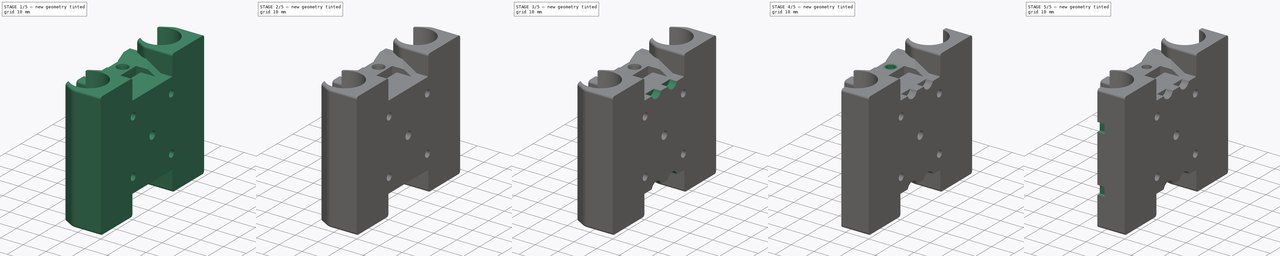
[diagram: build sequence overview — one tinted view per stage of 5, left to right]
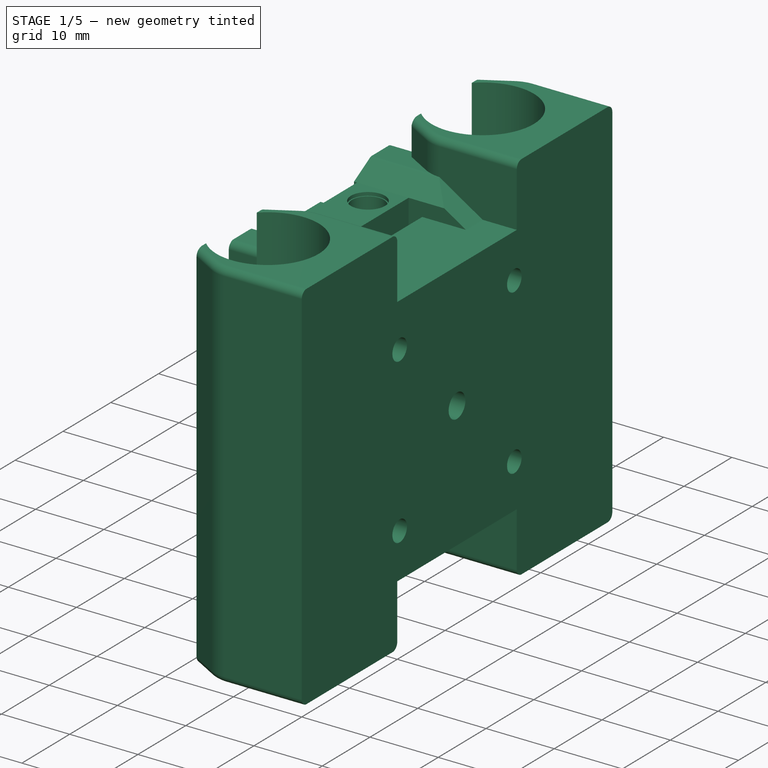
[diagram: stage 1 of 5 — iso view after this stage's code; geometry added in this stage tinted green]
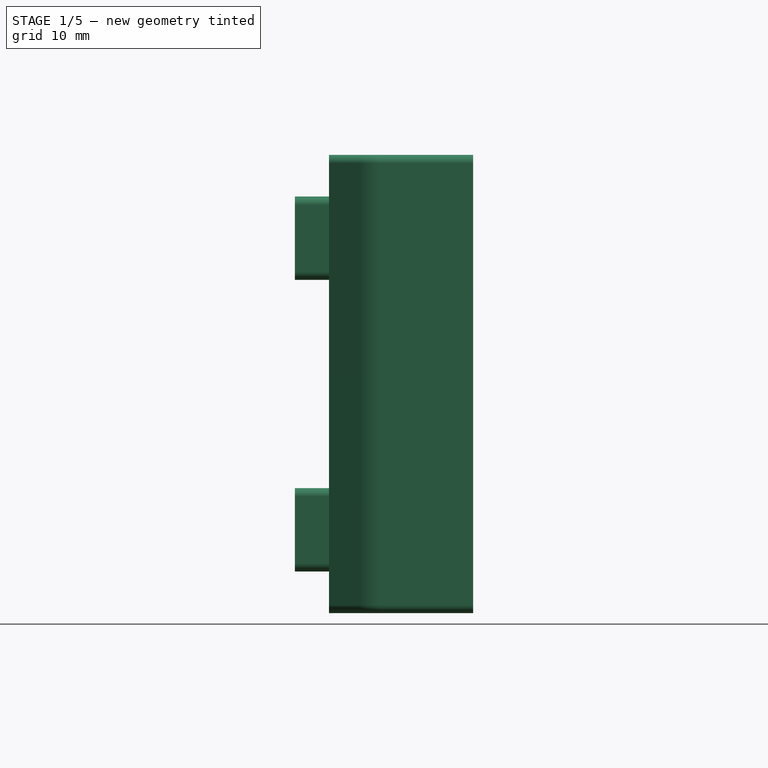
[diagram: stage 1 of 5 — front view after this stage's code; geometry added in this stage tinted green]
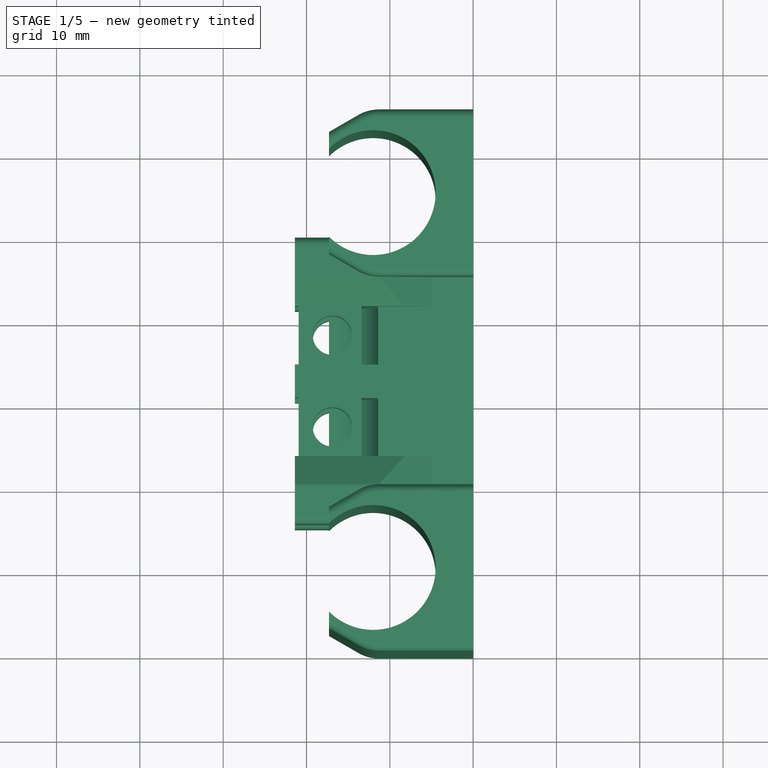
[diagram: stage 1 of 5 — top view after this stage's code; geometry added in this stage tinted green]
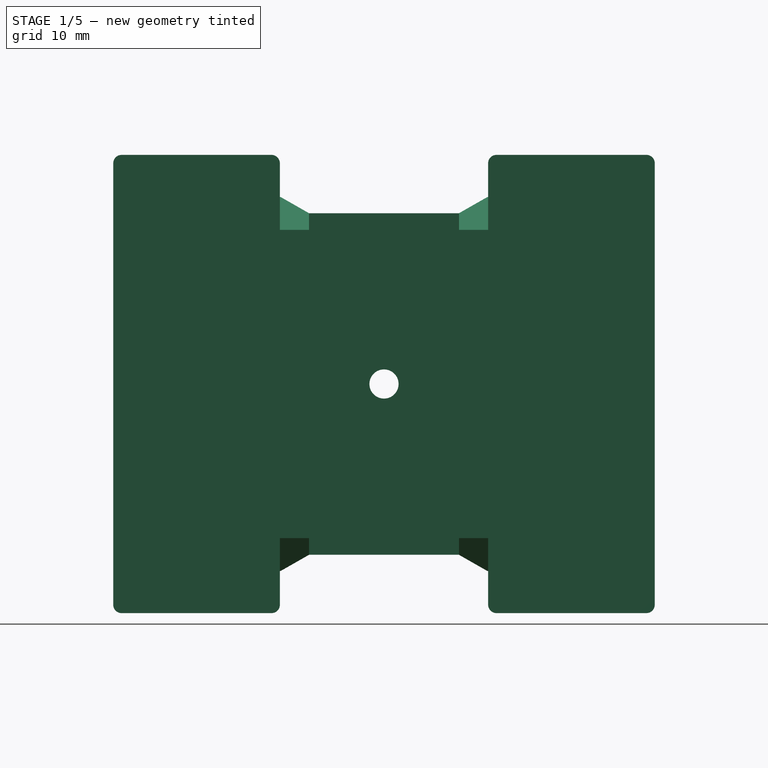
[diagram: stage 1 of 5 — right view after this stage's code; geometry added in this stage tinted green]
FCSTD DOCUMENT  (FreeCAD 0.17R13519 (Git))
Label: Corelia_0_X_carriage_v2
License: All rights reserved
LicenseURL: http://en.wikipedia.org/wiki/All_rights_reserved
objects: Sketcher::SketchObject×21, PartDesign::Pad×10, PartDesign::Pocket×9, PartDesign::LinearPattern×2, Part::Feature×1, PartDesign::FeatureBase×1, PartDesign::Groove×1, PartDesign::Fillet×1, PartDesign::Body×1
note: 67 computed .brp shape members not serialized (recipe doc carries the construction recipe); baked Part::Feature solids carry a one-line shape summary decoded from their .brp

FEATURE [Part::Feature] Part__Feature  label="X Carriage"
  shape: bbox 21.4 x 65.82 x 55 mm, 269 faces (baked)
FEATURE [PartDesign::FeatureBase] BaseFeature
  BaseFeature = -> Part__Feature
FEATURE [Sketcher::SketchObject] Sketch
  ExternalGeometry = -> [BaseFeature]
  MapMode = 5
  Placement = pos=(-21.4,0,0) rot=(-0.57735,0.57735,0.57735;4.18879rad)
  Support = -> [BaseFeature]
  sketch-geometry (2):
    g0: Circle CenterX=-45 CenterY=45 CenterZ=0 NormalX=0 NormalY=0 NormalZ=1 AngleXU=0 Radius=2.5
    g1: Circle CenterX=-45 CenterY=45 CenterZ=0 NormalX=0 NormalY=0 NormalZ=1 AngleXU=0 Radius=1.85
  constraints (4):
    c: Coincident(g0,g-3)
    c: Coincident(g1,g0)
    c: Radius(g1) = 1.85
    c: Radius(g0) = 2.5
FEATURE [PartDesign::Pad] Pad
  BaseFeature = -> BaseFeature
  Length = 10
  Length2 = 100
  Profile = -> Sketch
  Type = 3
  UpToFace = -> BaseFeature [Face256]
FEATURE [Sketcher::SketchObject] Sketch001
  ExternalGeometry = -> [Pad]
  MapMode = 5
  Placement = pos=(-19.9,0,0) rot=(-0.57735,0.57735,0.57735;4.18879rad)
  Support = -> [Pad]
  sketch-geometry (2):
    g0: Circle CenterX=-32.5 CenterY=45 CenterZ=0 NormalX=0 NormalY=0 NormalZ=1 AngleXU=0 Radius=2.5
    g1: Circle CenterX=-32.5 CenterY=45 CenterZ=0 NormalX=0 NormalY=0 NormalZ=1 AngleXU=0 Radius=1.85
  constraints (4):
    c: Coincident(g0,g-3)
    c: Coincident(g1,g0)
    c: Radius(g0) = 2.5
    c: Radius(g1) = 1.85
FEATURE [PartDesign::Pad] Pad001
  BaseFeature = -> Pad
  Length = 10
  Length2 = 100
  Profile = -> Sketch001
  Type = 3
  UpToFace = -> Pad [Face259]
FEATURE [Sketcher::SketchObject] Sketch002
  ExternalGeometry = -> [Pad001]
  MapMode = 5
  Placement = pos=(-21.4,0,0) rot=(-0.57735,0.57735,0.57735;4.18879rad)
  Support = -> [Pad001]
  sketch-geometry (2):
    g0: Circle CenterX=-20 CenterY=45 CenterZ=0 NormalX=0 NormalY=0 NormalZ=1 AngleXU=0 Radius=1.85
    g1: Circle CenterX=-20 CenterY=45 CenterZ=0 NormalX=0 NormalY=0 NormalZ=1 AngleXU=0 Radius=2.5
  constraints (4):
    c: Coincident(g0,g-3)
    c: Coincident(g1,g0)
    c: Radius(g0) = 1.85
    c: Radius(g1) = 2.5
FEATURE [PartDesign::Pad] Pad002
  BaseFeature = -> Pad001
  Length = 10
  Length2 = 100
  Profile = -> Sketch002
  Type = 3
  UpToFace = -> Pad001 [Face258]
FEATURE [Sketcher::SketchObject] Sketch003
  ExternalGeometry = -> [Pad002]
  MapMode = 5
  Placement = pos=(-21.4,0,0) rot=(-0.57735,0.57735,0.57735;4.18879rad)
  Support = -> [Pad002]
  sketch-geometry (2):
    g0: Circle CenterX=-45 CenterY=10 CenterZ=0 NormalX=0 NormalY=0 NormalZ=1 AngleXU=0 Radius=2.5
    g1: Circle CenterX=-45 CenterY=10 CenterZ=0 NormalX=0 NormalY=0 NormalZ=1 AngleXU=0 Radius=1.85
  constraints (4):
    c: Coincident(g0,g-3)
    c: Coincident(g1,g0)
    c: Radius(g1) = 1.85
    c: Radius(g0) = 2.5
FEATURE [PartDesign::Pad] Pad003
  BaseFeature = -> Pad002
  Length = 10
  Length2 = 100
  Profile = -> Sketch003
  Type = 3
  UpToFace = -> Pad002 [Face234]
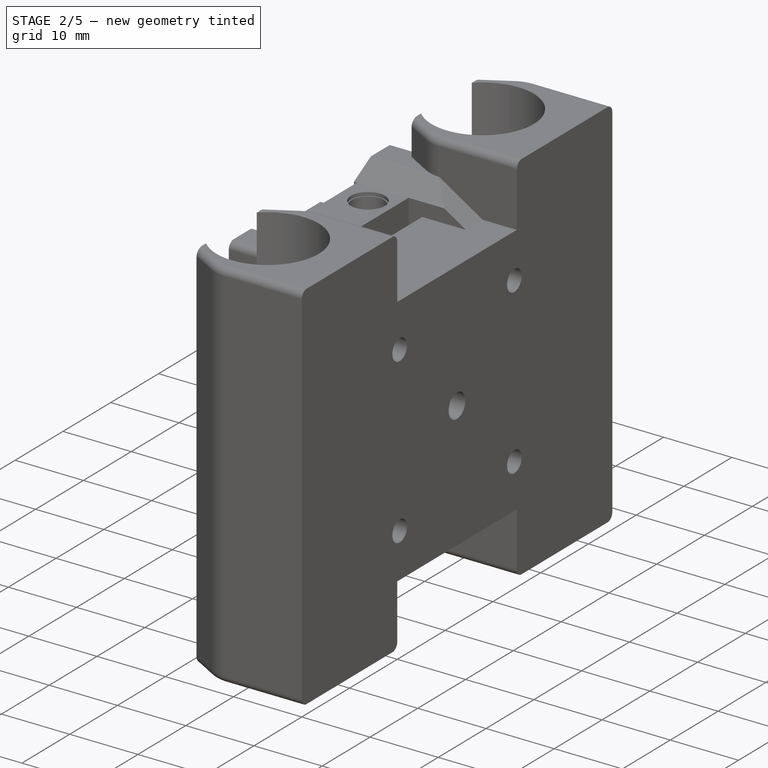
[diagram: stage 2 of 5 — iso view after this stage's code; geometry added in this stage tinted green]
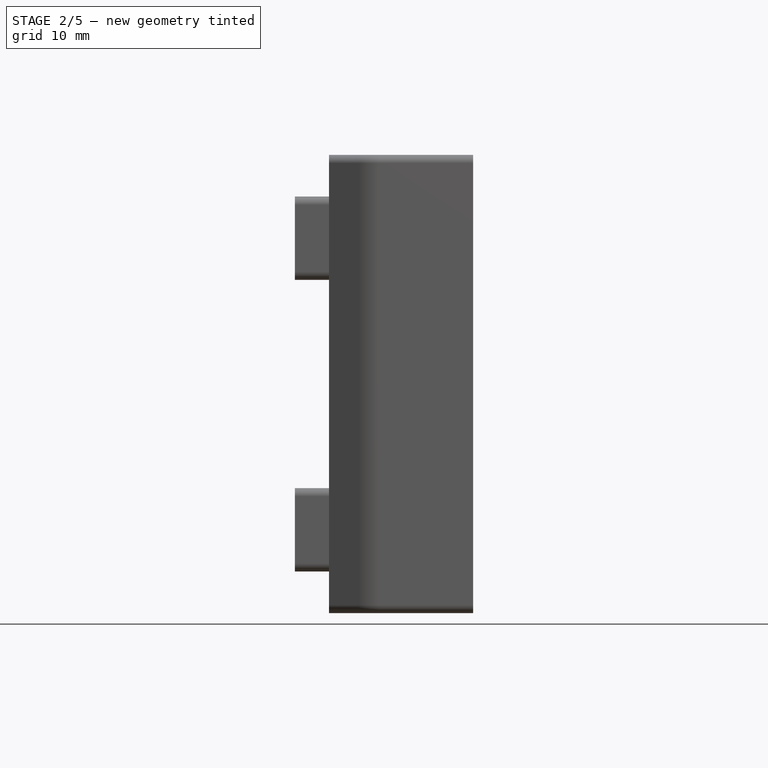
[diagram: stage 2 of 5 — front view after this stage's code; geometry added in this stage tinted green]
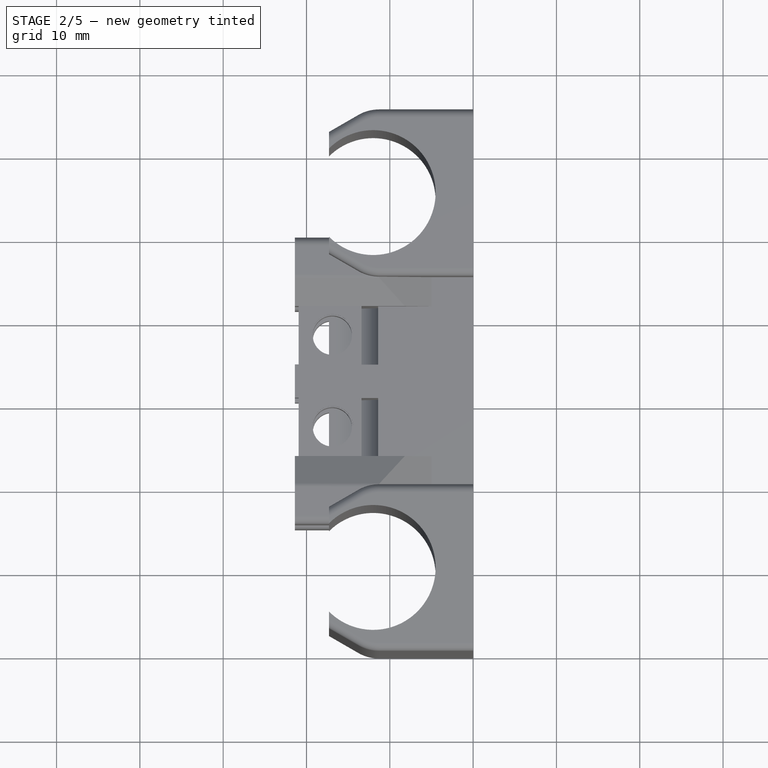
[diagram: stage 2 of 5 — top view after this stage's code; geometry added in this stage tinted green]
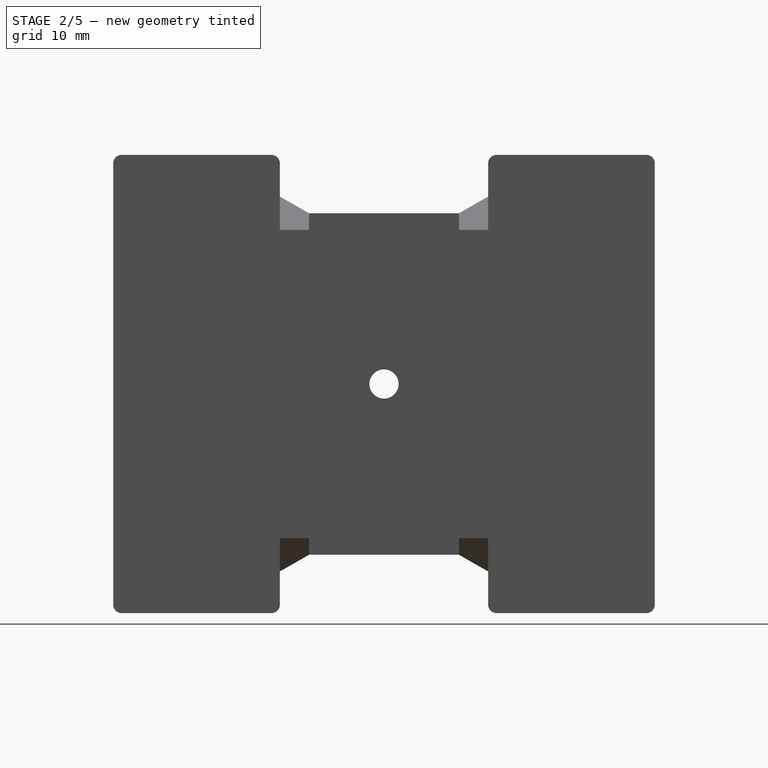
[diagram: stage 2 of 5 — right view after this stage's code; geometry added in this stage tinted green]
FEATURE [Sketcher::SketchObject] Sketch004
  ExternalGeometry = -> [Pad003]
  MapMode = 5
  Placement = pos=(-19.9,0,0) rot=(-0.57735,0.57735,0.57735;4.18879rad)
  Support = -> [Pad003]
  sketch-geometry (2):
    g0: Circle CenterX=-32.5 CenterY=10 CenterZ=0 NormalX=0 NormalY=0 NormalZ=1 AngleXU=0 Radius=1.85
    g1: Circle CenterX=-32.5 CenterY=10 CenterZ=0 NormalX=0 NormalY=0 NormalZ=1 AngleXU=0 Radius=2.35
  constraints (4):
    c: Coincident(g0,g-3)
    c: Coincident(g1,g0)
    c: Radius(g0) = 1.85
    c: Radius(g1) = 2.35
FEATURE [PartDesign::Pad] Pad004
  BaseFeature = -> Pad003
  Length = 10
  Length2 = 100
  Profile = -> Sketch004
  Type = 3
  UpToFace = -> Pad003 [Face250]
FEATURE [Sketcher::SketchObject] Sketch006
  ExternalGeometry = -> [Pad004]
  MapMode = 5
  Placement = pos=(-21.4,0,0) rot=(-0.57735,0.57735,0.57735;4.18879rad)
  Support = -> [Pad004]
  sketch-geometry (2):
    g0: Circle CenterX=-20 CenterY=10 CenterZ=0 NormalX=0 NormalY=0 NormalZ=1 AngleXU=0 Radius=1.85
    g1: Circle CenterX=-20 CenterY=10 CenterZ=0 NormalX=0 NormalY=0 NormalZ=1 AngleXU=0 Radius=2.5
  constraints (4):
    c: Coincident(g0,g-3)
    c: Coincident(g1,g0)
    c: Radius(g0) = 1.85
    c: Radius(g1) = 2.5
FEATURE [PartDesign::Pad] Pad005
  BaseFeature = -> Pad004
  Length = 10
  Length2 = 100
  Profile = -> Sketch006
  Type = 3
  UpToFace = -> Pad004 [Face256]
FEATURE [Sketcher::SketchObject] Sketch007
  ExternalGeometry = -> [Pad005]
  MapMode = 5
  Placement = pos=(-21.4,0,0) rot=(0.57735,-0.57735,-0.57735;2.0944rad)
  Support = -> [Pad005]
  sketch-geometry (1):
    g0: Circle CenterX=-45 CenterY=45 CenterZ=0 NormalX=0 NormalY=0 NormalZ=1 AngleXU=0 Radius=2
  constraints (2):
    c: Coincident(g0,g-3)
    c: Radius(g0) = 2
FEATURE [PartDesign::Pocket] Pocket
  BaseFeature = -> Pad005
  Length = 0.5
  Length2 = 100
  Profile = -> Sketch007
  Type = 0
FEATURE [Sketcher::SketchObject] Sketch008
  ExternalGeometry = -> [Pocket]
  MapMode = 5
  Placement = pos=(-21.4,0,0) rot=(-0.57735,0.57735,0.57735;4.18879rad)
  Support = -> [Pocket]
  sketch-geometry (1):
    g0: Circle CenterX=-20 CenterY=45 CenterZ=0 NormalX=0 NormalY=0 NormalZ=1 AngleXU=0 Radius=2
  constraints (2):
    c: Coincident(g0,g-3)
    c: Radius(g0) = 2
FEATURE [PartDesign::Pocket] Pocket001
  BaseFeature = -> Pocket
  Length = 0.5
  Length2 = 100
  Profile = -> Sketch008
  Type = 0
FEATURE [Sketcher::SketchObject] Sketch009
  ExternalGeometry = -> [Pocket001]
  MapMode = 5
  Placement = pos=(-21.4,0,0) rot=(0.57735,-0.57735,-0.57735;2.0944rad)
  Support = -> [Pocket001]
  sketch-geometry (1):
    g0: Circle CenterX=-45 CenterY=10 CenterZ=0 NormalX=0 NormalY=0 NormalZ=1 AngleXU=0 Radius=2
  constraints (2):
    c: Coincident(g0,g-3)
    c: Radius(g0) = 2
FEATURE [PartDesign::Pocket] Pocket002
  BaseFeature = -> Pocket001
  Length = 0.5
  Length2 = 100
  Profile = -> Sketch009
  Type = 0
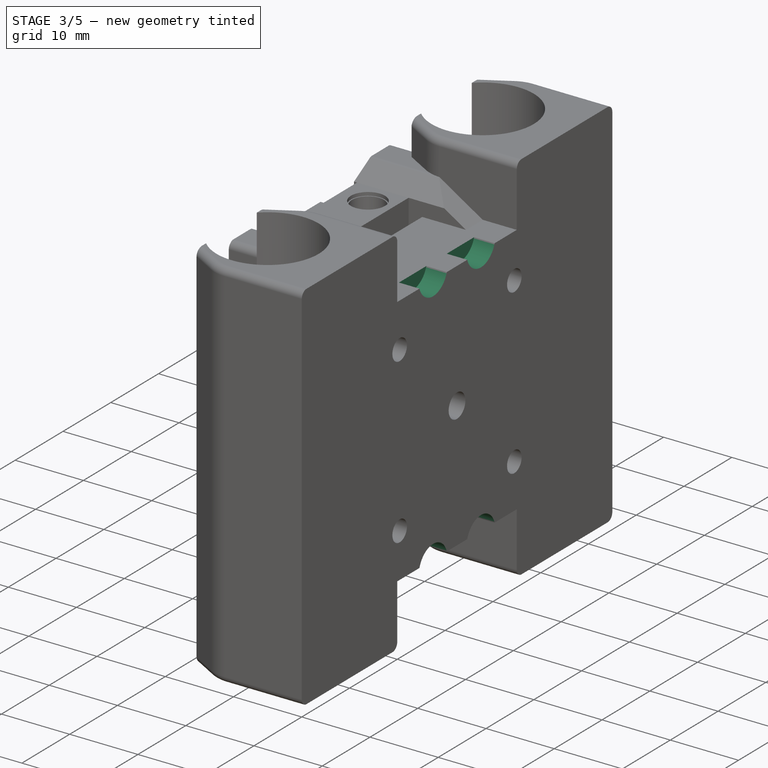
[diagram: stage 3 of 5 — iso view after this stage's code; geometry added in this stage tinted green]
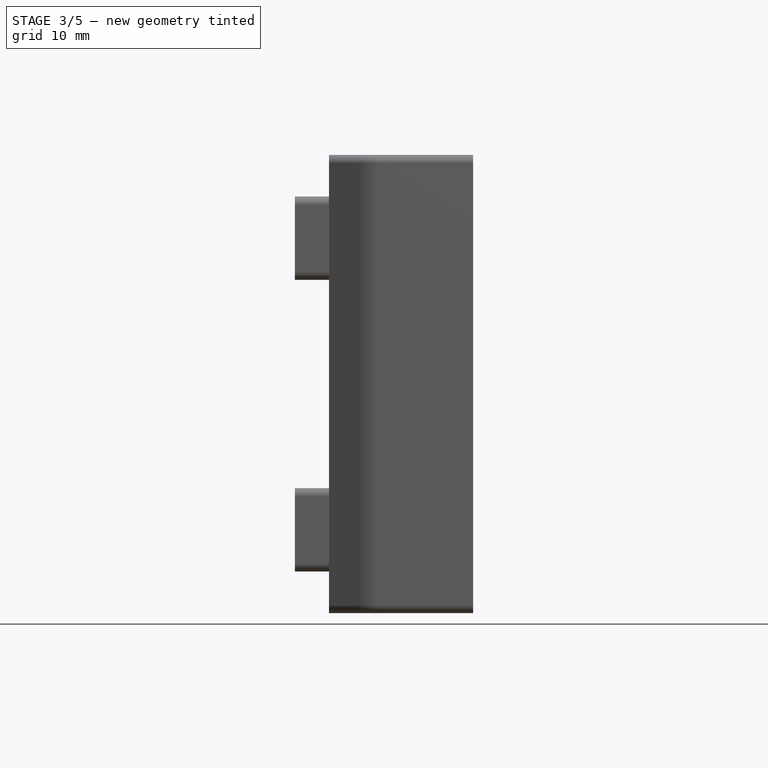
[diagram: stage 3 of 5 — front view after this stage's code; geometry added in this stage tinted green]
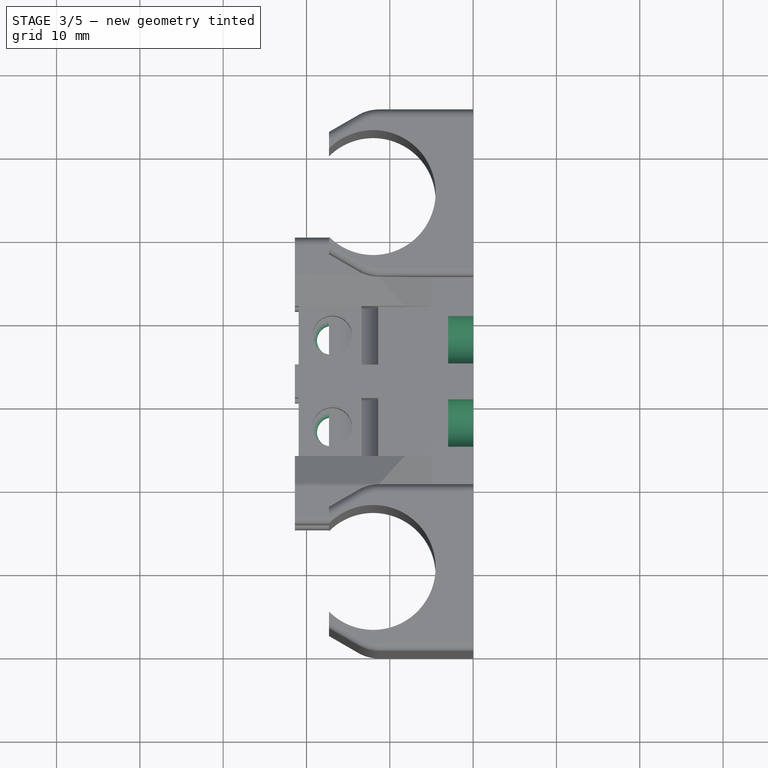
[diagram: stage 3 of 5 — top view after this stage's code; geometry added in this stage tinted green]
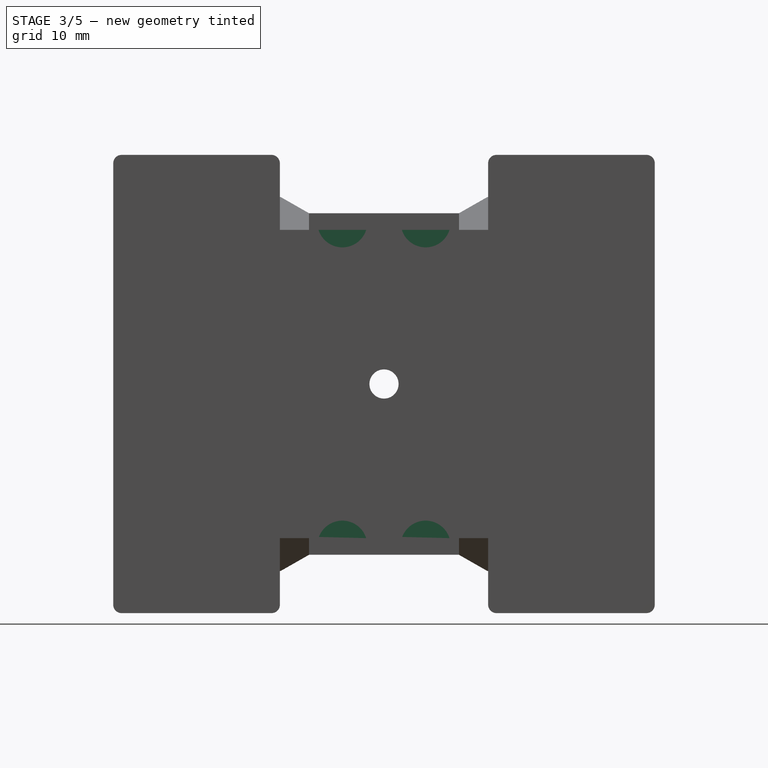
[diagram: stage 3 of 5 — right view after this stage's code; geometry added in this stage tinted green]
FEATURE [Sketcher::SketchObject] Sketch010
  ExternalGeometry = -> [Pocket002]
  MapMode = 5
  Placement = pos=(-21.4,0,0) rot=(-0.57735,0.57735,0.57735;4.18879rad)
  Support = -> [Pocket002]
  sketch-geometry (1):
    g0: Circle CenterX=-20 CenterY=10 CenterZ=0 NormalX=0 NormalY=0 NormalZ=1 AngleXU=0 Radius=2
  constraints (2):
    c: Coincident(g0,g-3)
    c: Radius(g0) = 2
FEATURE [PartDesign::Pocket] Pocket003
  BaseFeature = -> Pocket002
  Length = 0.5
  Length2 = 100
  Profile = -> Sketch010
  Type = 0
FEATURE [Sketcher::SketchObject] Sketch011
  MapMode = 5
  Placement = pos=(0,0,0) rot=(0.57735,0.57735,0.57735;2.0944rad)
  Support = -> [Pocket003]
  sketch-geometry (8):
    g0: LineSegment [constr] StartX=27.5 StartY=46.9 StartZ=0 EndX=37.5 EndY=46.9 EndZ=0
    g1: LineSegment [constr] StartX=37.5 StartY=46.9 StartZ=0 EndX=37.5 EndY=8.1 EndZ=0
    g2: LineSegment [constr] StartX=37.5 StartY=8.1 StartZ=0 EndX=27.5 EndY=8.1 EndZ=0
    g3: LineSegment [constr] StartX=27.5 StartY=8.1 StartZ=0 EndX=27.5 EndY=46.9 EndZ=0
    g4: Circle CenterX=27.5 CenterY=46.9 CenterZ=0 NormalX=0 NormalY=0 NormalZ=1 AngleXU=0 Radius=3
    g5: Circle CenterX=37.5 CenterY=46.9 CenterZ=0 NormalX=0 NormalY=0 NormalZ=1 AngleXU=0 Radius=3
    g6: Circle CenterX=27.5 CenterY=8.1 CenterZ=0 NormalX=0 NormalY=0 NormalZ=1 AngleXU=0 Radius=3
    g7: Circle CenterX=37.5 CenterY=8.1 CenterZ=0 NormalX=0 NormalY=0 NormalZ=1 AngleXU=0 Radius=3
  constraints (20):
    c: Coincident(g0,g1)
    c: Coincident(g1,g2)
    c: Coincident(g2,g3)
    c: Coincident(g3,g0)
    c: Horizontal(g0)
    c: Horizontal(g2)
    c: Vertical(g1)
    c: Vertical(g3)
    c: Coincident(g4,g0)
    c: Coincident(g5,g0)
    c: Coincident(g6,g2)
    c: Coincident(g7,g1)
    c: Equal(g6,g4)
    c: Equal(g4,g5)
    c: Equal(g5,g7)
    c: Radius(g4) = 3
    c: DistanceX(g2) = 27.5
    c: DistanceY(g2) = 8.1
    c: DistanceX(g2,g2) = 10
    c: DistanceY(g1,g1) = 38.8
FEATURE [PartDesign::Pocket] Pocket004
  BaseFeature = -> Pocket003
  Length = 3
  Length2 = 100
  Profile = -> Sketch011
  Type = 0
FEATURE [Sketcher::SketchObject] Sketch012
  ExternalGeometry = -> [Pocket004]
  MapMode = 5
  Placement = pos=(0,0,7) rot=(1,0,0;3.14159rad)
  Support = -> [Pocket004]
  sketch-geometry (2):
    g0: Circle CenterX=-16.9 CenterY=-27 CenterZ=0 NormalX=0 NormalY=0 NormalZ=1 AngleXU=0 Radius=2.5
    g1: Circle CenterX=-16.9 CenterY=-27 CenterZ=0 NormalX=0 NormalY=0 NormalZ=1 AngleXU=0 Radius=1.85
  constraints (4):
    c: Coincident(g0,g-3)
    c: Radius(g0) = 2.5
    c: Coincident(g1,g0)
    c: Radius(g1) = 1.85
FEATURE [PartDesign::Pad] Pad006
  BaseFeature = -> Pocket004
  Length = 10
  Length2 = 100
  Profile = -> Sketch012
  Type = 3
  UpToFace = -> Pocket004 [Face32]
FEATURE [Sketcher::SketchObject] Sketch013
  ExternalGeometry = -> [Pad006]
  MapMode = 5
  Placement = pos=(0,0,7) rot=(1,0,0;3.14159rad)
  Support = -> [Pad006]
  sketch-geometry (2):
    g0: Circle CenterX=-16.9 CenterY=-38 CenterZ=0 NormalX=0 NormalY=0 NormalZ=1 AngleXU=0 Radius=1.85
    g1: Circle CenterX=-16.9 CenterY=-38 CenterZ=0 NormalX=0 NormalY=0 NormalZ=1 AngleXU=0 Radius=2.5
  constraints (4):
    c: Coincident(g1,g0)
    c: Coincident(g-3,g0)
    c: Radius(g0) = 1.85
    c: Radius(g1) = 2.5
FEATURE [PartDesign::Pad] Pad007
  BaseFeature = -> Pad006
  Length = 10
  Length2 = 100
  Profile = -> Sketch013
  Type = 3
  UpToFace = -> Pad006 [Face32]
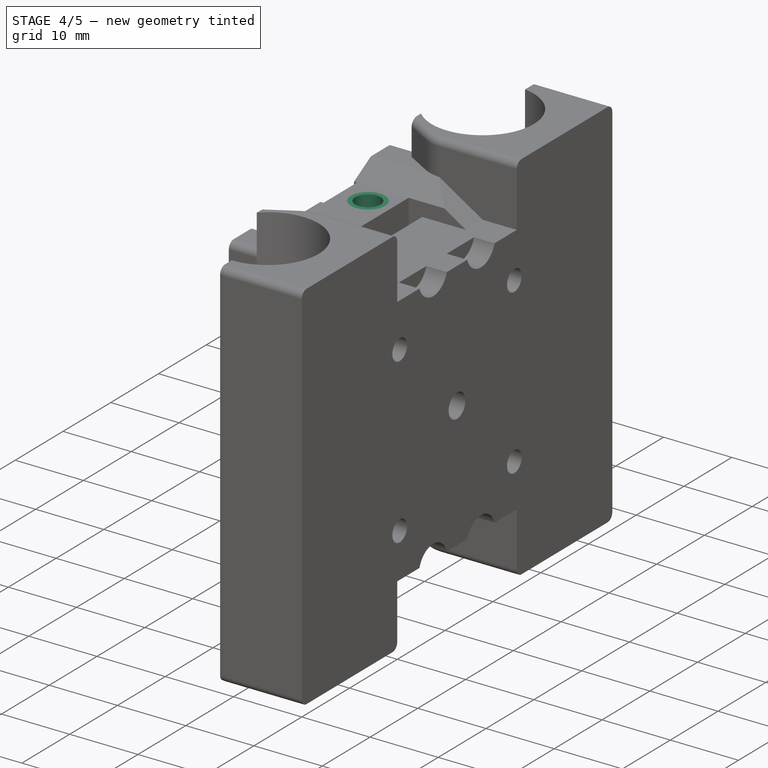
[diagram: stage 4 of 5 — iso view after this stage's code; geometry added in this stage tinted green]
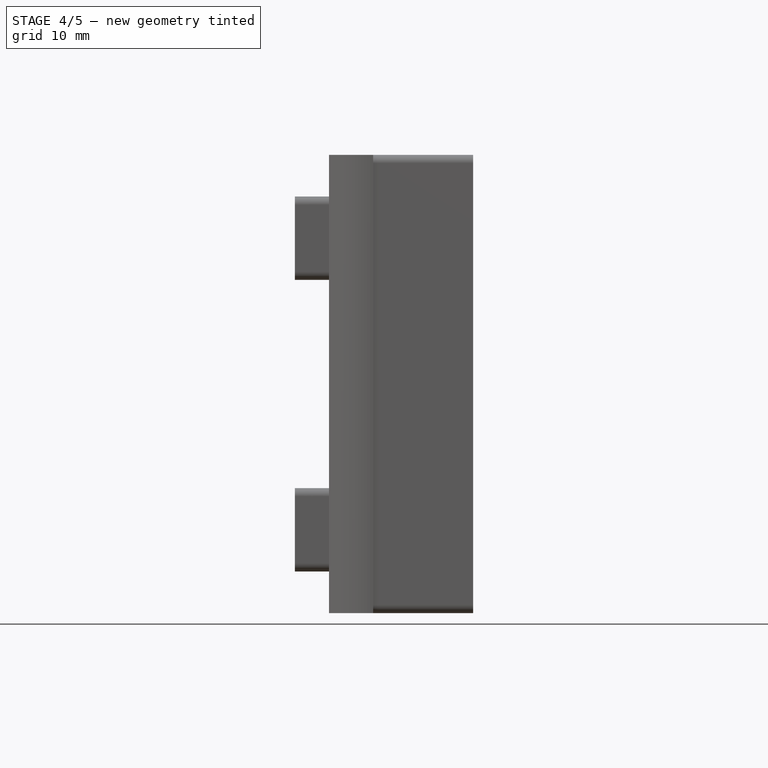
[diagram: stage 4 of 5 — front view after this stage's code; geometry added in this stage tinted green]
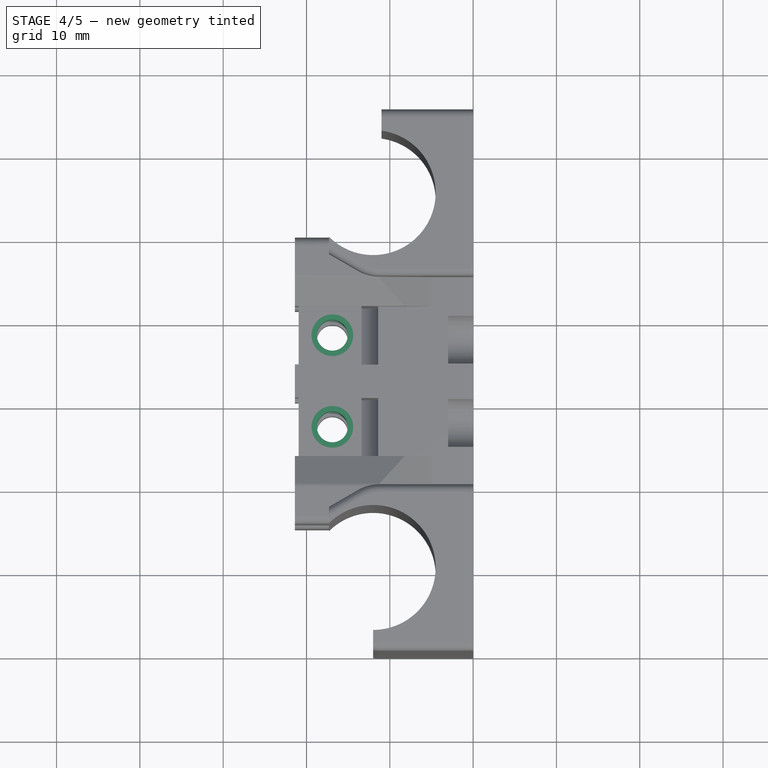
[diagram: stage 4 of 5 — top view after this stage's code; geometry added in this stage tinted green]
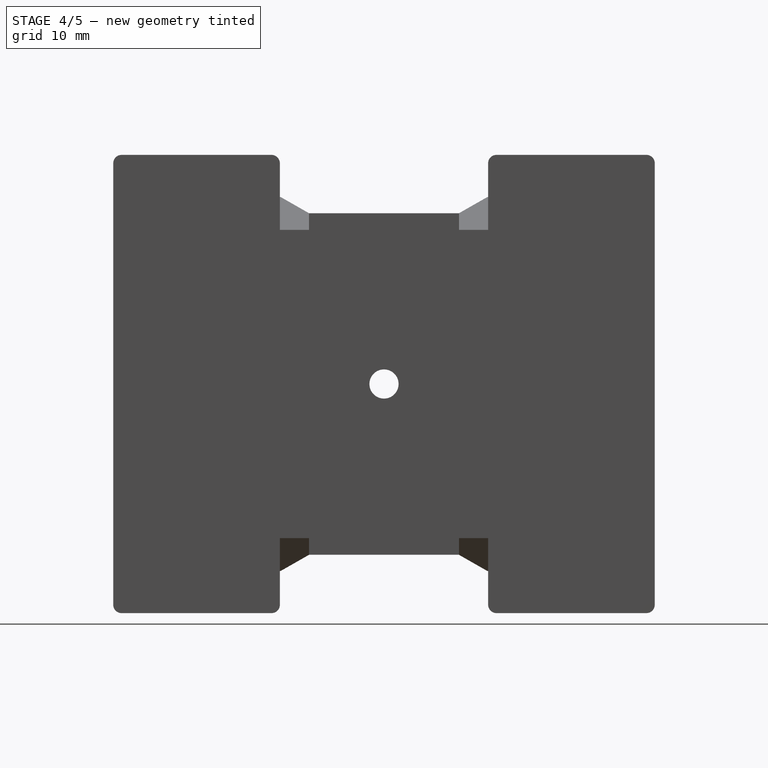
[diagram: stage 4 of 5 — right view after this stage's code; geometry added in this stage tinted green]
FEATURE [Sketcher::SketchObject] Sketch014
  ExternalGeometry = -> [Pad007]
  MapMode = 5
  Placement = pos=(0,0,48) rot=(0,0,1;0rad)
  Support = -> [Pad007]
  sketch-geometry (2):
    g0: Circle CenterX=-16.9 CenterY=38 CenterZ=0 NormalX=0 NormalY=0 NormalZ=1 AngleXU=0 Radius=2.5
    g1: Circle CenterX=-16.9 CenterY=38 CenterZ=0 NormalX=0 NormalY=0 NormalZ=1 AngleXU=0 Radius=1.85
  constraints (4):
    c: Coincident(g0,g-3)
    c: Coincident(g1,g0)
    c: Radius(g0) = 2.5
    c: Radius(g1) = 1.85
FEATURE [PartDesign::Pad] Pad008
  BaseFeature = -> Pad007
  Length = 10
  Length2 = 100
  Profile = -> Sketch014
  Type = 3
  UpToFace = -> Pad007 [Face48]
FEATURE [Sketcher::SketchObject] Sketch015
  ExternalGeometry = -> [Pad008]
  MapMode = 5
  Placement = pos=(0,0,48) rot=(0,0,1;0rad)
  Support = -> [Pad008]
  sketch-geometry (2):
    g0: Circle CenterX=-16.9 CenterY=27 CenterZ=0 NormalX=0 NormalY=0 NormalZ=1 AngleXU=0 Radius=2.5
    g1: Circle CenterX=-16.9 CenterY=27 CenterZ=0 NormalX=0 NormalY=0 NormalZ=1 AngleXU=0 Radius=1.85
  constraints (4):
    c: Coincident(g0,g-3)
    c: Coincident(g1,g0)
    c: Radius(g1) = 1.85
    c: Radius(g0) = 2.5
FEATURE [PartDesign::Pad] Pad009
  BaseFeature = -> Pad008
  Length = 10
  Length2 = 100
  Profile = -> Sketch015
  Type = 3
  UpToFace = -> Pad008 [Face48]
FEATURE [Sketcher::SketchObject] Sketch016
  ExternalGeometry = -> [Pad009]
  MapMode = 5
  Placement = pos=(0,0,42) rot=(1,0,0;3.14159rad)
  Support = -> [Pad009]
  sketch-geometry (2):
    g0: Circle CenterX=-16.9 CenterY=-27 CenterZ=0 NormalX=0 NormalY=0 NormalZ=1 AngleXU=0 Radius=2
    g1: Circle CenterX=-16.9 CenterY=-38 CenterZ=0 NormalX=0 NormalY=0 NormalZ=1 AngleXU=0 Radius=2
  constraints (4):
    c: Coincident(g0,g-4)
    c: Coincident(g1,g-3)
    c: Equal(g0,g1)
    c: Radius(g0) = 2
FEATURE [PartDesign::Pocket] Pocket005
  BaseFeature = -> Pad009
  Length = 0.5
  Length2 = 29.5
  Profile = -> Sketch016
  Type = 4
FEATURE [Sketcher::SketchObject] Sketch017
  MapMode = 5
  Placement = pos=(0,0,0) rot=(1,0,0;3.14159rad)
  Support = -> [Pocket005]
  sketch-geometry (8):
    g0: LineSegment StartX=-12 StartY=-10 StartZ=0 EndX=-23 EndY=-10 EndZ=0
    g1: LineSegment StartX=-23 StartY=-10 StartZ=0 EndX=-23 EndY=1 EndZ=0
    g2: LineSegment StartX=-23 StartY=1 StartZ=0 EndX=-12 EndY=1 EndZ=0
    g3: LineSegment StartX=-12 StartY=1 StartZ=0 EndX=-12 EndY=-10 EndZ=0
    g4: LineSegment StartX=-11 StartY=-55 StartZ=0 EndX=-22 EndY=-55 EndZ=0
    g5: LineSegment StartX=-22 StartY=-55 StartZ=0 EndX=-22 EndY=-66 EndZ=0
    g6: LineSegment StartX=-22 StartY=-66 StartZ=0 EndX=-11 EndY=-66 EndZ=0
    g7: LineSegment StartX=-11 StartY=-66 StartZ=0 EndX=-11 EndY=-55 EndZ=0
  constraints (24):
    c: Coincident(g0,g1)
    c: Coincident(g1,g2)
    c: Coincident(g2,g3)
    c: Coincident(g3,g0)
    c: Horizontal(g0)
    c: Horizontal(g2)
    c: Vertical(g1)
    c: Vertical(g3)
    c: Coincident(g4,g5)
    c: Coincident(g5,g6)
    c: Coincident(g6,g7)
    c: Coincident(g7,g4)
    c: Horizontal(g4)
    c: Horizontal(g6)
    c: Vertical(g5)
    c: Vertical(g7)
    c: Equal(g3,g0)
    c: Equal(g0,g4)
    c: Equal(g4,g7)
    c: DistanceX(g2,g2) = 11
    c: DistanceX(g0) = -12
    c: DistanceY(g0) = -10
    c: DistanceX(g4) = -11
    c: DistanceY(g4) = -55
FEATURE [PartDesign::Pocket] Pocket006
  BaseFeature = -> Pocket005
  Length = 5
  Length2 = 100
  Profile = -> Sketch017
  Type = 1
FEATURE [Sketcher::SketchObject] Sketch018
  MapMode = 5
  Placement = pos=(0,0,0) rot=(1,0,0;3.14159rad)
  Support = -> [Pocket006]
  sketch-geometry (2):
    g0: Circle CenterX=-12 CenterY=-10 CenterZ=0 NormalX=0 NormalY=0 NormalZ=1 AngleXU=0 Radius=7.5
    g1: Circle CenterX=-12 CenterY=-55 CenterZ=0 NormalX=0 NormalY=0 NormalZ=1 AngleXU=0 Radius=7.5
  constraints (6):
    c: DistanceX(g0) = -12
    c: DistanceY(g0) = -10
    c: Radius(g0) = 7.5
    c: DistanceX(g1) = -12
    c: DistanceY(g1) = -55
    c: Equal(g0,g1)
FEATURE [PartDesign::Pocket] Pocket007
  BaseFeature = -> Pocket006
  Length = 5
  Length2 = 100
  Profile = -> Sketch018
  Type = 1
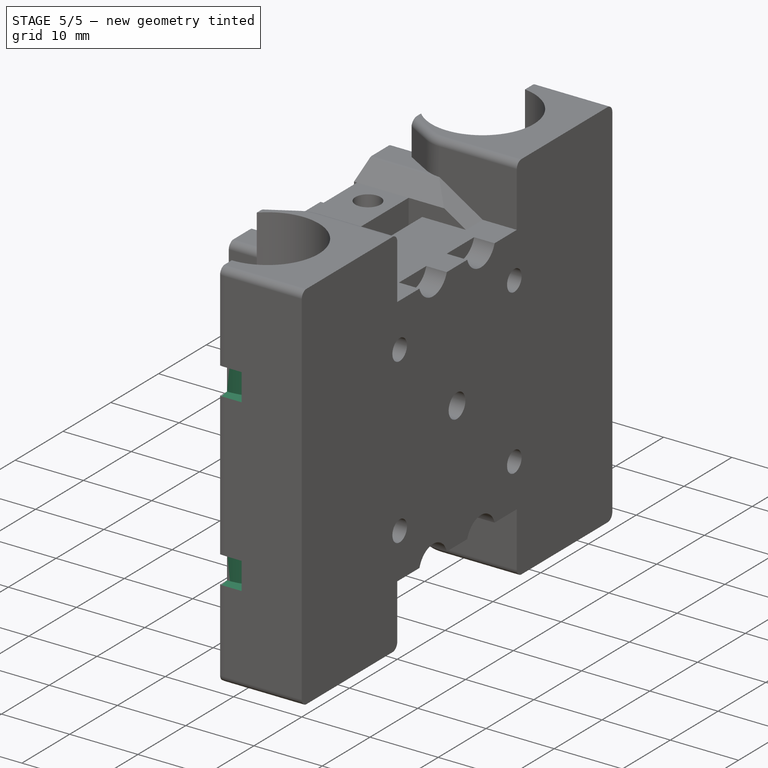
[diagram: stage 5 of 5 — iso view after this stage's code; geometry added in this stage tinted green]
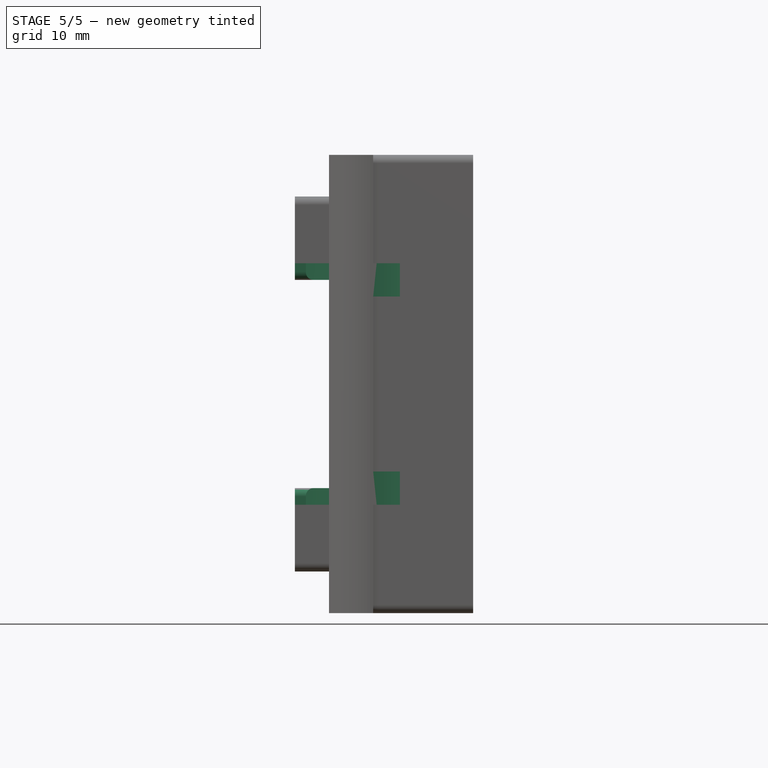
[diagram: stage 5 of 5 — front view after this stage's code; geometry added in this stage tinted green]
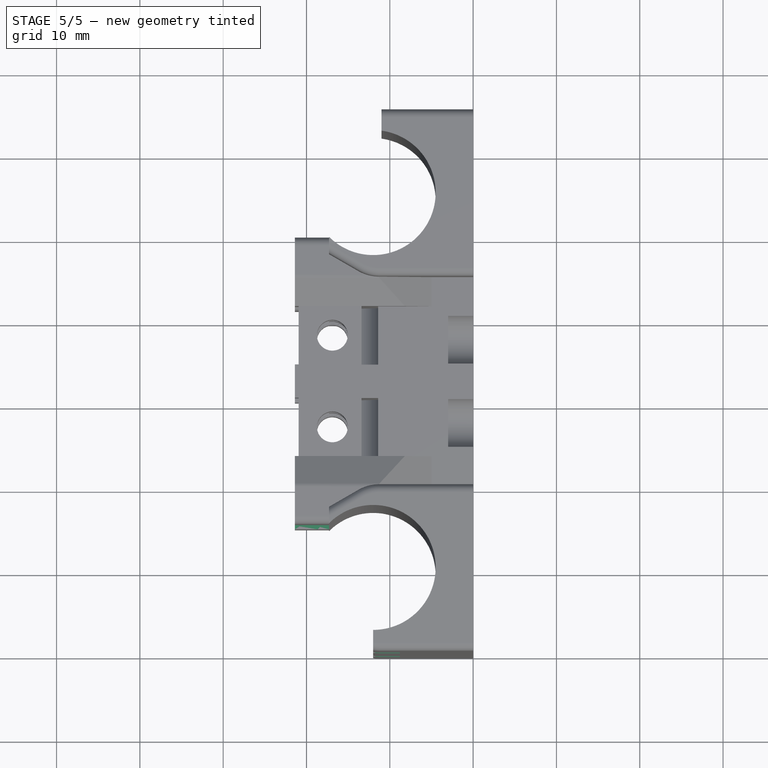
[diagram: stage 5 of 5 — top view after this stage's code; geometry added in this stage tinted green]
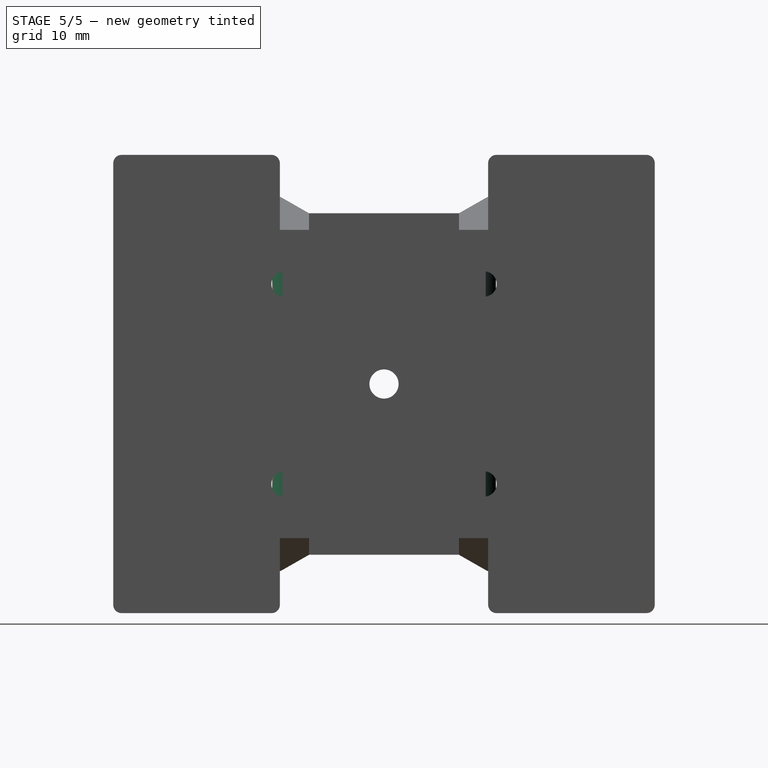
[diagram: stage 5 of 5 — right view after this stage's code; geometry added in this stage tinted green]
FEATURE [Sketcher::SketchObject] Sketch019
  MapMode = 5
  Placement = pos=(-12,0,0) rot=(0.57735,-0.57735,-0.57735;2.0944rad)
  Support = -> [Pocket007]
  sketch-geometry (8):
    g0: LineSegment StartX=-1.5 StartY=13 StartZ=0 EndX=0.5 EndY=13 EndZ=0
    g1: LineSegment StartX=0.5 StartY=13 StartZ=0 EndX=0.5 EndY=17 EndZ=0
    g2: LineSegment StartX=0.5 StartY=17 StartZ=0 EndX=-1.5 EndY=17 EndZ=0
    g3: LineSegment StartX=-1.5 StartY=17 StartZ=0 EndX=-1.5 EndY=13 EndZ=0
    g4: LineSegment StartX=0.5 StartY=42 StartZ=0 EndX=-1.5 EndY=42 EndZ=0
    g5: LineSegment StartX=-1.5 StartY=42 StartZ=0 EndX=-1.5 EndY=38 EndZ=0
    g6: LineSegment StartX=-1.5 StartY=38 StartZ=0 EndX=0.5 EndY=38 EndZ=0
    g7: LineSegment StartX=0.5 StartY=38 StartZ=0 EndX=0.5 EndY=42 EndZ=0
  constraints (24):
    c: Coincident(g0,g1)
    c: Coincident(g1,g2)
    c: Coincident(g2,g3)
    c: Coincident(g3,g0)
    c: Horizontal(g0)
    c: Horizontal(g2)
    c: Vertical(g1)
    c: Vertical(g3)
    c: DistanceX(g0,g0) = 2
    c: DistanceY(g1,g1) = 4
    c: DistanceY(g0) = 13
    c: DistanceX(g0) = 0.5
    c: Coincident(g4,g5)
    c: Coincident(g5,g6)
    c: Coincident(g6,g7)
    c: Coincident(g7,g4)
    c: Horizontal(g4)
    c: Horizontal(g6)
    c: Vertical(g5)
    c: Vertical(g7)
    c: Equal(g1,g7)
    c: Equal(g6,g0)
    c: PointOnObject(g6,g1)
    c: DistanceY(g1,g6) = 21
FEATURE [Sketcher::SketchObject] Sketch020
  MapMode = 5
  Placement = pos=(-12,0,0) rot=(0.57735,-0.57735,-0.57735;2.0944rad)
  Support = -> [Pocket007]
  sketch-geometry (1):
    g0: LineSegment StartX=-10 StartY=0 StartZ=0 EndX=-10 EndY=56.6216 EndZ=0
  constraints (3):
    c: PointOnObject(g0,g-1)
    c: Vertical(g0)
    c: DistanceX(g0) = -10
FEATURE [PartDesign::Groove] Groove
  Angle = 360
  Axis = (0,0,1)
  Base = (-12,10,0)
  BaseFeature = -> Pocket007
  Profile = -> Sketch019
  ReferenceAxis = -> Sketch020 [Edge1]
  Reversed = true
FEATURE [PartDesign::LinearPattern] LinearPattern
  BaseFeature = -> Groove
  Direction = -> Sketch019 [H_Axis]
  Length = 45
  Occurrences = 2
  Originals = -> [Groove]
  Reversed = true
FEATURE [Sketcher::SketchObject] Sketch021
  MapMode = 5
  Placement = pos=(0,15.2998,0) rot=(1,0,0;1.5708rad)
  Support = -> [LinearPattern]
  sketch-geometry (4):
    g0: LineSegment StartX=-22.2955 StartY=42 StartZ=0 EndX=-17.2955 EndY=42 EndZ=0
    g1: LineSegment StartX=-17.2955 StartY=42 StartZ=0 EndX=-17.2955 EndY=13 EndZ=0
    g2: LineSegment StartX=-17.2955 StartY=13 StartZ=0 EndX=-22.2955 EndY=13 EndZ=0
    g3: LineSegment StartX=-22.2955 StartY=13 StartZ=0 EndX=-22.2955 EndY=42 EndZ=0
  constraints (12):
    c: Coincident(g0,g1)
    c: Coincident(g1,g2)
    c: Coincident(g2,g3)
    c: Coincident(g3,g0)
    c: Horizontal(g0)
    c: Horizontal(g2)
    c: Vertical(g1)
    c: Vertical(g3)
    c: DistanceY(g3,g3) = 29
    c: DistanceX(g2,g2) = 5
    c: DistanceX(g1) = -17.2955
    c: DistanceY(g1) = 13
FEATURE [PartDesign::Pocket] Pocket008
  BaseFeature = -> LinearPattern
  Length = 1.4
  Length2 = 100
  Profile = -> Sketch021
  Type = 0
FEATURE [PartDesign::LinearPattern] LinearPattern001
  BaseFeature = -> Pocket008
  Direction = -> Y_Axis
  Length = 33.01
  Occurrences = 2
  Originals = -> [Pocket008]
FEATURE [PartDesign::Fillet] Fillet
  Base = -> LinearPattern001 [Edge754,Edge779,Edge58,Edge170]
  BaseFeature = -> LinearPattern001
  Radius = 1
FEATURE [PartDesign::Body] Body
  BaseFeature = -> Part__Feature
  Group = -> [BaseFeature,Sketch,Pad,Sketch001,Pad001,Sketch002,Pad002,Sketch003,Pad003,Sketch004,Pad004,Sketch006,Pad005,Sketch007,Pocket,Sketch008,Pocket001,Sketch009,Pocket002,Sketch010,Pocket003,Sketch011,Pocket004,Sketch012,Pad006,Sketch013,Pad007,Sketch014,Pad008,Sketch015,Pad009,Sketch016,Pocket005,Sketch017,Pocket006,Sketch018,Pocket007,Sketch019,Sketch020,Groove,LinearPattern,Sketch021,Pocket008,+2 more]
  Origin = -> Origin
  Tip = -> Fillet
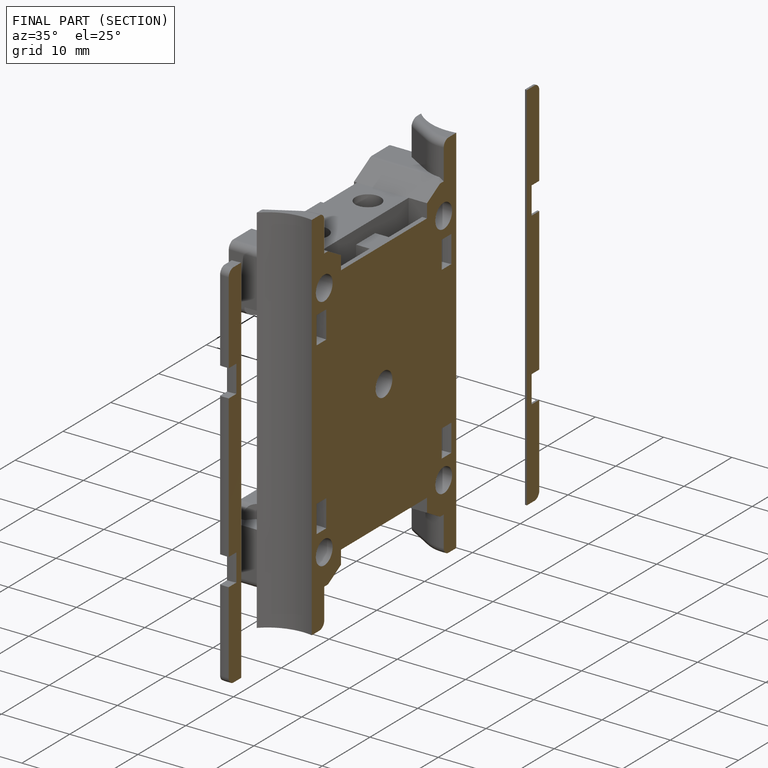
[diagram: finished part — half-section view (interior)]
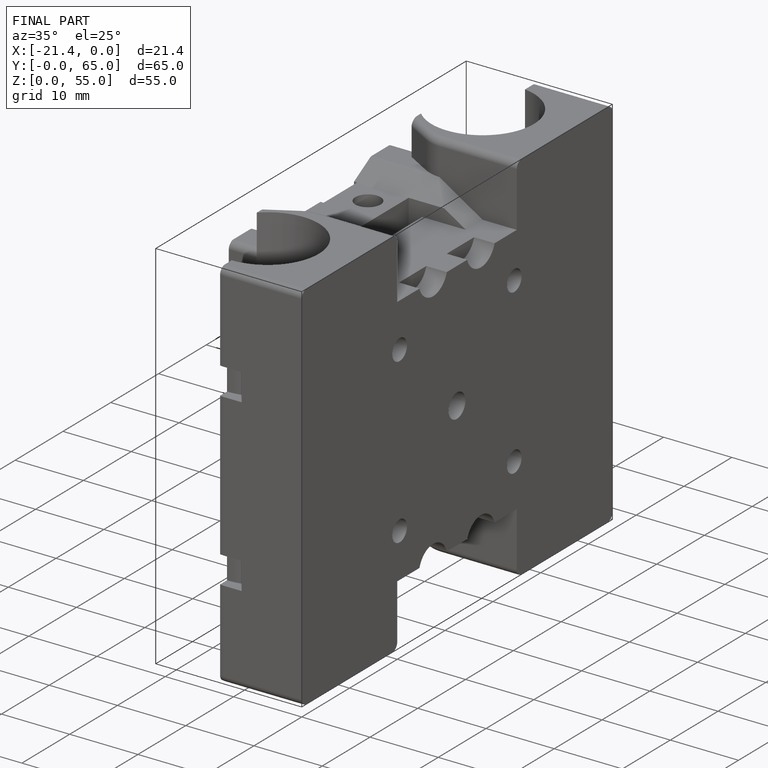
[diagram: finished part — iso view with bounding-box wireframe]
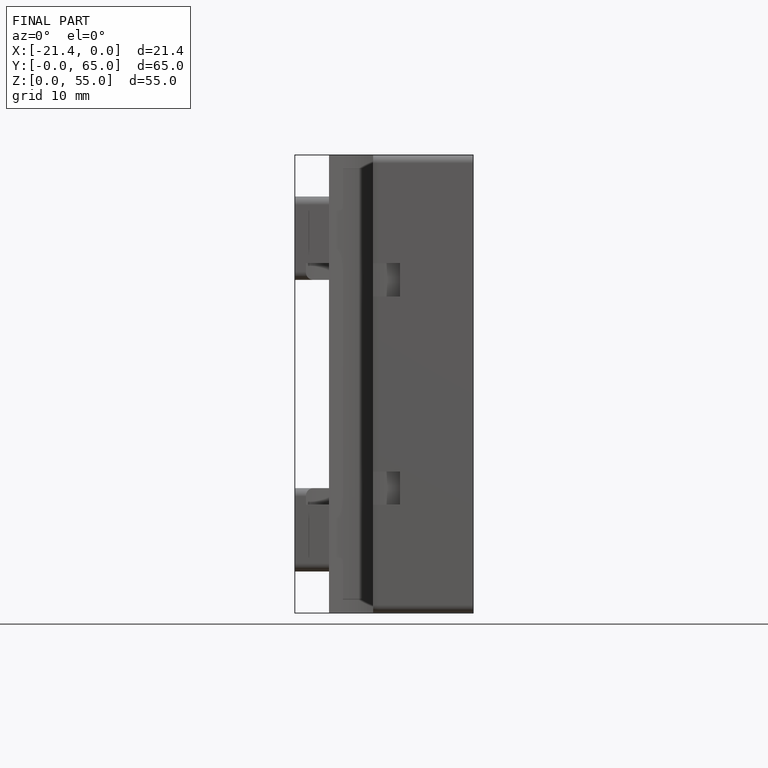
[diagram: finished part — front view with bounding-box wireframe]
